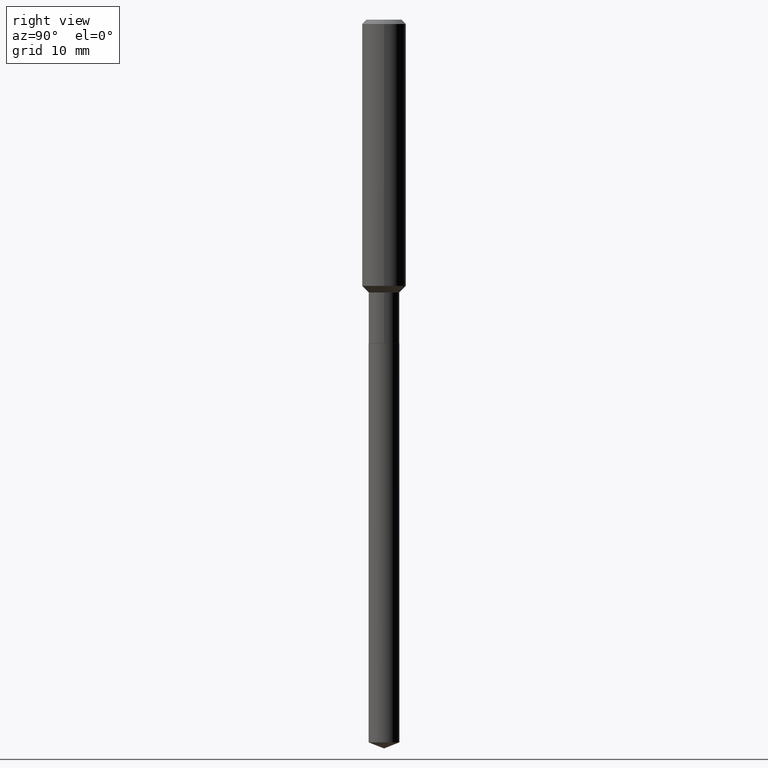
[diagram: clean part render]
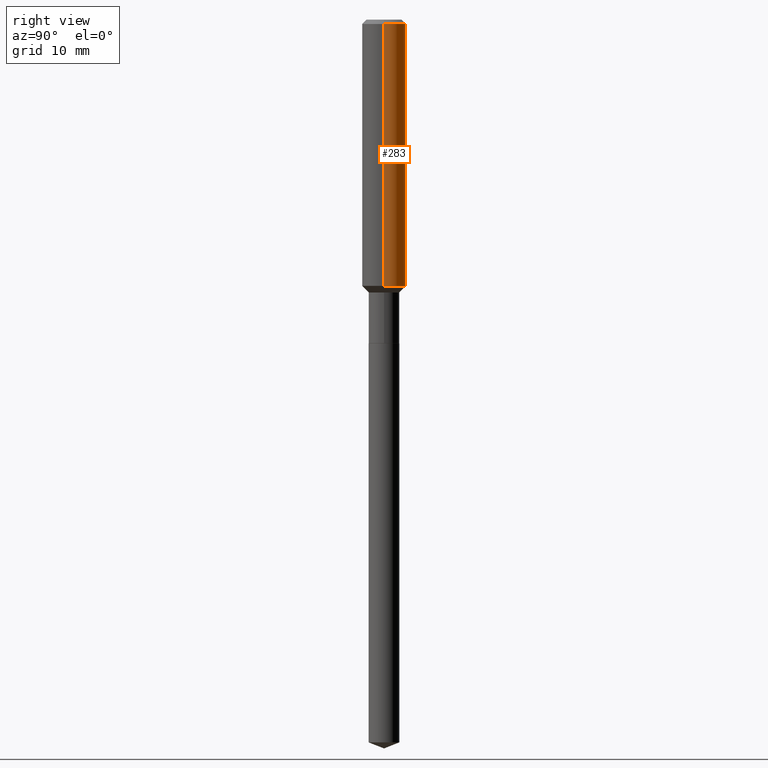
[diagram: same view with one face highlighted and labeled with its STEP entity id]
A machine part, right view. The second image highlights one B-rep face of the part: STEP entity #283.
In plain terms, the highlighted cylindrical surface (edge-blend (fillet) strip) has radius 2.9997 mm, axis along (-0, 0, 1).
Its self-contained STEP definition (entity closure, byte-faithful):
#47 = CARTESIAN_POINT ( 'NONE',  ( -0.1180999999999999966, -1.708617876834551977E-15, -0.02362000000000014088 ) ) ;
#69 = DIRECTION ( 'NONE',  ( -2.445468806185136877E-29, 3.491481338843145188E-15, 1.000000000000000000 ) ) ;
#91 = DIRECTION ( 'NONE',  ( -2.445468806185136597E-29, 3.491481338843145583E-15, 1.000000000000000000 ) ) ;
#101 = AXIS2_PLACEMENT_3D ( 'NONE', #193, #119, #272 ) ;
#108 = CARTESIAN_POINT ( 'NONE',  ( -0.1181000000000000799, 8.391509709326788873E-16, -5.809262341591047988E-30 ) ) ;
#112 = CARTESIAN_POINT ( 'NONE',  ( 3.511204111920619005E-29, -5.013068906310987652E-15, -1.435799999999999743 ) ) ;
#119 = DIRECTION ( 'NONE',  ( -2.445468806185136597E-29, 3.491481338843145583E-15, 1.000000000000000000 ) ) ;
#127 = CARTESIAN_POINT ( 'NONE',  ( 0.000000000000000000, 0.000000000000000000, 0.000000000000000000 ) ) ;
#141 = EDGE_CURVE ( 'NONE', #167, #243, #446, .T. ) ;
#143 = CIRCLE ( 'NONE', #101, 0.1180999999999999966 ) ;
#157 = VECTOR ( 'NONE', #417, 39.37007874015748143 ) ;
#163 = CARTESIAN_POINT ( 'NONE',  ( 0.1180999999999999966, -9.071566814582237199E-16, -0.02362000000000014088 ) ) ;
#167 = VERTEX_POINT ( 'NONE', #227 ) ;
#193 = CARTESIAN_POINT ( 'NONE',  ( 5.776197320209327532E-31, -8.246878922347559293E-17, -0.02362000000000014088 ) ) ;
#202 = DIRECTION ( 'NONE',  ( 1.000000000000000000, -6.982962677686266711E-15, 4.876176775795936353E-29 ) ) ;
#206 = CARTESIAN_POINT ( 'NONE',  ( 0.1181000000000001632, -5.837756798545737492E-15, -1.435799999999999743 ) ) ;
#209 = EDGE_LOOP ( 'NONE', ( #332, #436, #363, #376 ) ) ;
#218 = EDGE_CURVE ( 'NONE', #405, #167, #412, .T. ) ;
#221 = VERTEX_POINT ( 'NONE', #163 ) ;
#227 = CARTESIAN_POINT ( 'NONE',  ( -0.1181000000000001632, -4.173917935378308666E-15, -1.435799999999999743 ) ) ;
#242 = CYLINDRICAL_SURFACE ( 'NONE', #483, 0.1181000000000000799 ) ;
#243 = VERTEX_POINT ( 'NONE', #47 ) ;
#269 = VECTOR ( 'NONE', #69, 39.37007874015748143 ) ;
#270 = DIRECTION ( 'NONE',  ( 1.000000000000000000, -6.982962677686270655E-15, 0.000000000000000000 ) ) ;
#272 = DIRECTION ( 'NONE',  ( 1.000000000000000000, -6.982962677686266711E-15, 0.000000000000000000 ) ) ;
#273 = EDGE_CURVE ( 'NONE', #221, #243, #143, .T. ) ;
#283 = ADVANCED_FACE ( 'NONE', ( #464 ), #242, .T. ) ;
#284 = LINE ( 'NONE', #441, #269 ) ;
#285 = AXIS2_PLACEMENT_3D ( 'NONE', #112, #449, #270 ) ;
#332 = ORIENTED_EDGE ( 'NONE', *, *, #218, .T. ) ;
#363 = ORIENTED_EDGE ( 'NONE', *, *, #273, .F. ) ;
#376 = ORIENTED_EDGE ( 'NONE', *, *, #451, .F. ) ;
#405 = VERTEX_POINT ( 'NONE', #206 ) ;
#412 = CIRCLE ( 'NONE', #285, 0.1181000000000001632 ) ;
#417 = DIRECTION ( 'NONE',  ( -2.445468806185136877E-29, 3.491481338843145188E-15, 1.000000000000000000 ) ) ;
#436 = ORIENTED_EDGE ( 'NONE', *, *, #141, .T. ) ;
#441 = CARTESIAN_POINT ( 'NONE',  ( 0.1181000000000000799, -8.246878922347486570E-16, 5.758764772215004644E-30 ) ) ;
#446 = LINE ( 'NONE', #108, #157 ) ;
#449 = DIRECTION ( 'NONE',  ( -2.445468806185136597E-29, 3.491481338843145583E-15, 1.000000000000000000 ) ) ;
#451 = EDGE_CURVE ( 'NONE', #405, #221, #284, .T. ) ;
#464 = FACE_OUTER_BOUND ( 'NONE', #209, .T. ) ;
#483 = AXIS2_PLACEMENT_3D ( 'NONE', #127, #91, #202 ) ;